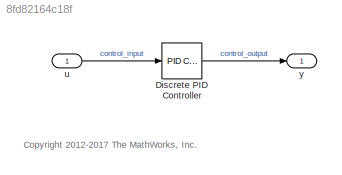
MODEL slx_8fd82164c18f
KIND model
CONFIG AbsTol = auto
CONFIG EnableMultiTasking = on
CONFIG FixedStep = T_sample_control
CONFIG MaxStep = auto
CONFIG MinStep = auto
CONFIG RelTol = 1e-3
CONFIG SampleTimeConstraint = Unconstrained
CONFIG Solver = FixedStepDiscrete
CONFIG SolverName = FixedStepDiscrete
CONFIG StartTime = 0.0
CONFIG StopTime = 10.0
BLOCK [Reference] Discrete PID Controller  REF=simulink/Continuous/PID Controller
  Ports = [1, 1]
  SourceBlock = simulink/Continuous/PID Controller
  SourceProductBaseCode = SL
  SourceProductName = Simulink
  SourceType = PID 1dof
BLOCK [Inport] u
  IconDisplay = Port number
  OutDataTypeStr = double
  PortDimensions = 1
  SampleTime = T_sample_control
  SignalType = real
BLOCK [Outport] y
  IconDisplay = Port number
  OutDataTypeStr = double
  PortDimensions = 1
  SampleTime = T_sample_control
  SignalType = real
  VarSizeSig = No
ANNOTATION (root): <copyright redacted>
LINE Discrete PID Controller:1 -> y:1
LINE u:1 -> Discrete PID Controller:1
